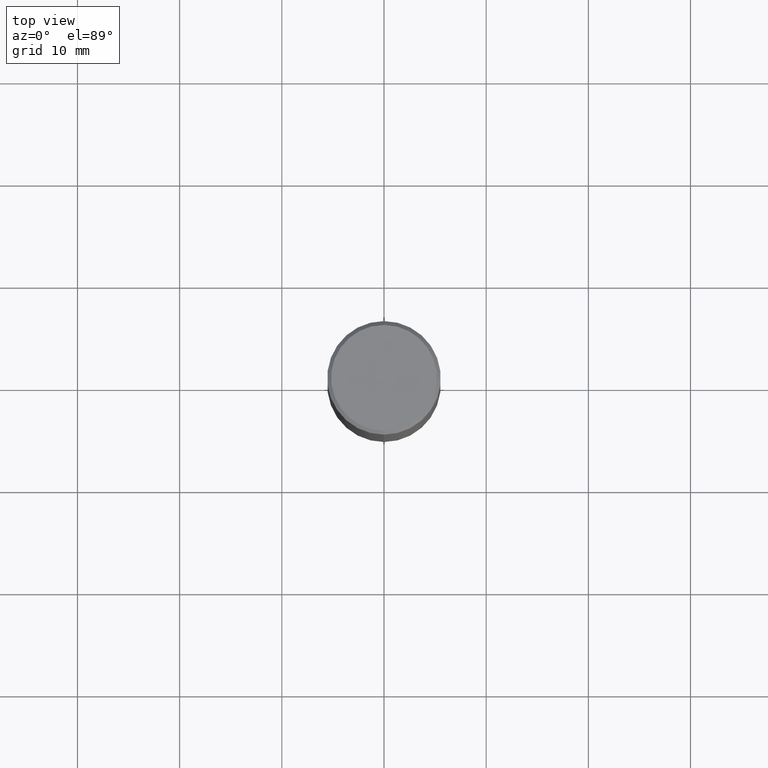
[diagram: clean part render]
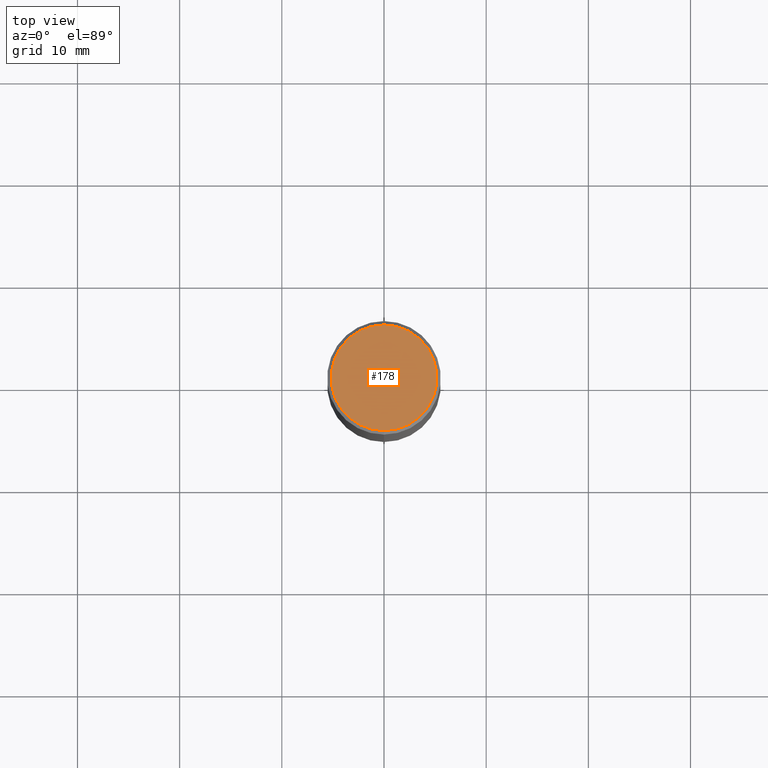
[diagram: same view with one face highlighted and labeled with its STEP entity id]
A machine part, top view. The second image highlights one B-rep face of the part: STEP entity #178.
In plain terms, the highlighted planar face has unit normal (0, -0, -1).
Its self-contained STEP definition (entity closure, byte-faithful):
#4 = DIRECTION ( 'NONE',  ( -2.445428866101404443E-29, 3.491538535316298316E-15, 1.000000000000000000 ) ) ;
#24 = EDGE_CURVE ( 'NONE', #320, #435, #260, .T. ) ;
#55 = DIRECTION ( 'NONE',  ( 6.982962677686265922E-15, 1.000000000000000000, -3.491538535316297921E-15 ) ) ;
#56 = AXIS2_PLACEMENT_3D ( 'NONE', #488, #78, #358 ) ;
#66 = EDGE_CURVE ( 'NONE', #435, #320, #463, .T. ) ;
#78 = DIRECTION ( 'NONE',  ( -2.445428866101404443E-29, 3.491538535316298316E-15, 1.000000000000000000 ) ) ;
#92 = DIRECTION ( 'NONE',  ( -6.982962677686265133E-15, -1.000000000000000000, 3.491538535316298316E-15 ) ) ;
#178 = ADVANCED_FACE ( 'NONE', ( #457 ), #189, .F. ) ;
#189 = PLANE ( 'NONE',  #487 ) ;
#216 = CARTESIAN_POINT ( 'NONE',  ( -1.449280202029235538E-15, -0.2037499999999999867, 5.993075674126653216E-16 ) ) ;
#260 = CIRCLE ( 'NONE', #56, 0.2037499999999999867 ) ;
#283 = ORIENTED_EDGE ( 'NONE', *, *, #66, .T. ) ;
#320 = VERTEX_POINT ( 'NONE', #430 ) ;
#341 = CARTESIAN_POINT ( 'NONE',  ( 1.422778645578576487E-15, 0.2037499999999999867, -7.674476811497108312E-16 ) ) ;
#358 = DIRECTION ( 'NONE',  ( -6.982962677686265133E-15, -1.000000000000000000, 3.491538535316298316E-15 ) ) ;
#361 = CARTESIAN_POINT ( 'NONE',  ( 2.741164584547628974E-45, -3.913784576302397328E-31, -1.120934091580303315E-16 ) ) ;
#367 = ORIENTED_EDGE ( 'NONE', *, *, #24, .T. ) ;
#423 = AXIS2_PLACEMENT_3D ( 'NONE', #361, #4, #92 ) ;
#430 = CARTESIAN_POINT ( 'NONE',  ( 1.475150865661223764E-15, 0.2037499999999999867, -8.234943857287259354E-16 ) ) ;
#435 = VERTEX_POINT ( 'NONE', #216 ) ;
#439 = EDGE_LOOP ( 'NONE', ( #367, #283 ) ) ;
#457 = FACE_OUTER_BOUND ( 'NONE', #439, .T. ) ;
#463 = CIRCLE ( 'NONE', #423, 0.2037499999999999867 ) ;
#487 = AXIS2_PLACEMENT_3D ( 'NONE', #341, #495, #55 ) ;
#488 = CARTESIAN_POINT ( 'NONE',  ( 2.741164584547628974E-45, -3.913784576302397328E-31, -1.120934091580303315E-16 ) ) ;
#495 = DIRECTION ( 'NONE',  ( 2.445428866101404443E-29, -3.491538535316297921E-15, -1.000000000000000000 ) ) ;